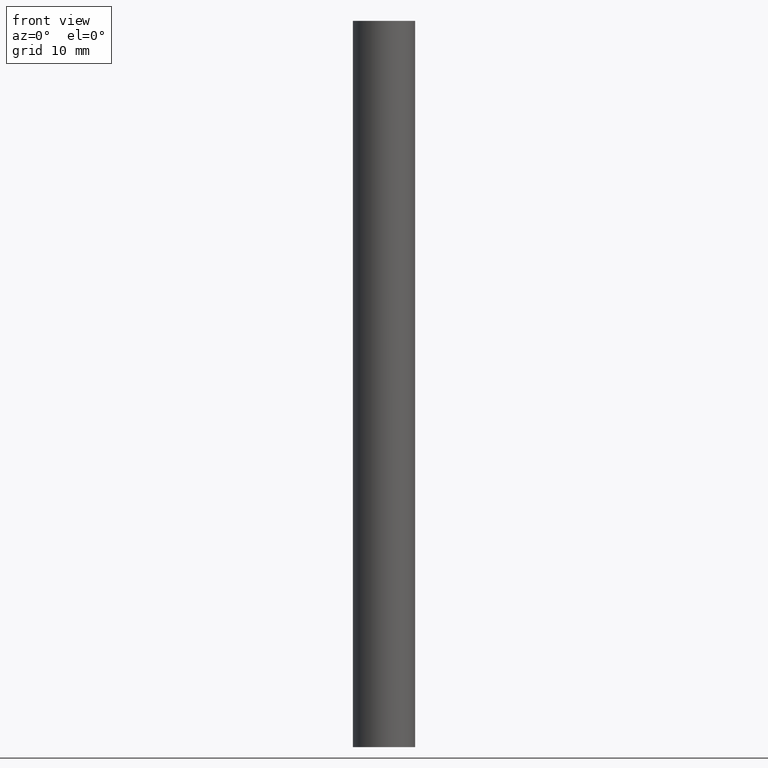
[diagram: clean part render]
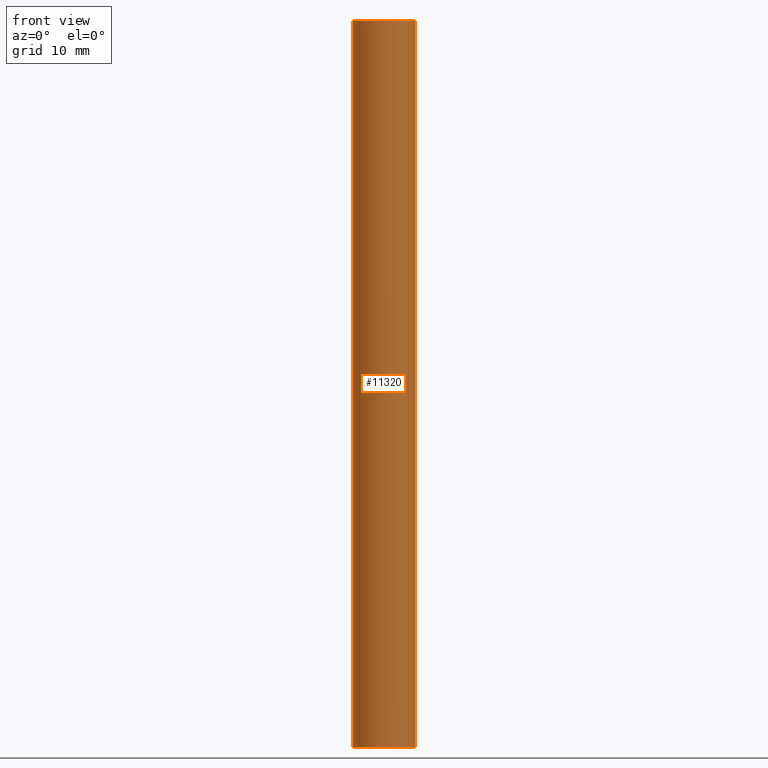
[diagram: same view with one face highlighted and labeled with its STEP entity id]
A machine part, front view. The second image highlights one B-rep face of the part: STEP entity #11320.
In plain terms, the highlighted cylindrical surface (bore or boss wall) has radius 3 mm, axis along (-0, -0, -1).
Its self-contained STEP definition (entity closure, byte-faithful):
#434 = CARTESIAN_POINT ( 'NONE',  ( 0.000000000000000000, 0.000000000000000000, 35.00000000000000000 ) ) ;
#2404 = CYLINDRICAL_SURFACE ( 'NONE', #3427, 3.000000000000000444 ) ;
#3427 = AXIS2_PLACEMENT_3D ( 'NONE', #6182, #14111, #12917 ) ;
#3963 = CIRCLE ( 'NONE', #10767, 3.000000000000000444 ) ;
#4305 = VERTEX_POINT ( 'NONE', #9353 ) ;
#5336 = EDGE_CURVE ( 'NONE', #9940, #9940, #3963, .T. ) ;
#5716 = EDGE_LOOP ( 'NONE', ( #9284 ) ) ;
#6142 = FACE_OUTER_BOUND ( 'NONE', #5716, .T. ) ;
#6182 = CARTESIAN_POINT ( 'NONE',  ( 0.000000000000000000, 0.000000000000000000, 35.00000000000000000 ) ) ;
#6513 = FACE_OUTER_BOUND ( 'NONE', #7664, .T. ) ;
#6773 = CARTESIAN_POINT ( 'NONE',  ( 0.000000000000000000, 0.000000000000000000, -35.00000000000000000 ) ) ;
#6824 = DIRECTION ( 'NONE',  ( 0.000000000000000000, 0.000000000000000000, 1.000000000000000000 ) ) ;
#7251 = CARTESIAN_POINT ( 'NONE',  ( 3.000000000000000444, 0.000000000000000000, -35.00000000000000000 ) ) ;
#7664 = EDGE_LOOP ( 'NONE', ( #11997 ) ) ;
#8400 = DIRECTION ( 'NONE',  ( 1.000000000000000000, 0.000000000000000000, 0.000000000000000000 ) ) ;
#9284 = ORIENTED_EDGE ( 'NONE', *, *, #9935, .F. ) ;
#9353 = CARTESIAN_POINT ( 'NONE',  ( 3.000000000000000444, 0.000000000000000000, 35.00000000000000000 ) ) ;
#9935 = EDGE_CURVE ( 'NONE', #4305, #4305, #14679, .T. ) ;
#9940 = VERTEX_POINT ( 'NONE', #7251 ) ;
#10767 = AXIS2_PLACEMENT_3D ( 'NONE', #6773, #6824, #13590 ) ;
#11320 = ADVANCED_FACE ( 'NONE', ( #6142, #6513 ), #2404, .T. ) ;
#11997 = ORIENTED_EDGE ( 'NONE', *, *, #5336, .T. ) ;
#12917 = DIRECTION ( 'NONE',  ( -1.000000000000000000, 0.000000000000000000, 0.000000000000000000 ) ) ;
#13590 = DIRECTION ( 'NONE',  ( 1.000000000000000000, 0.000000000000000000, 0.000000000000000000 ) ) ;
#13937 = AXIS2_PLACEMENT_3D ( 'NONE', #434, #14069, #8400 ) ;
#14069 = DIRECTION ( 'NONE',  ( 0.000000000000000000, 0.000000000000000000, 1.000000000000000000 ) ) ;
#14111 = DIRECTION ( 'NONE',  ( -0.000000000000000000, -0.000000000000000000, -1.000000000000000000 ) ) ;
#14679 = CIRCLE ( 'NONE', #13937, 3.000000000000000444 ) ;